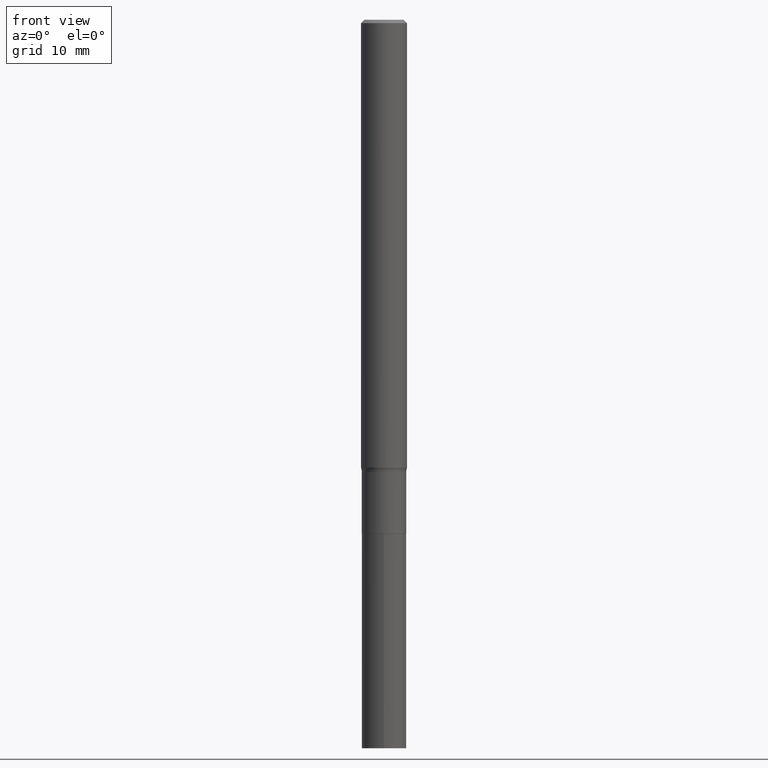
[diagram: clean part render]
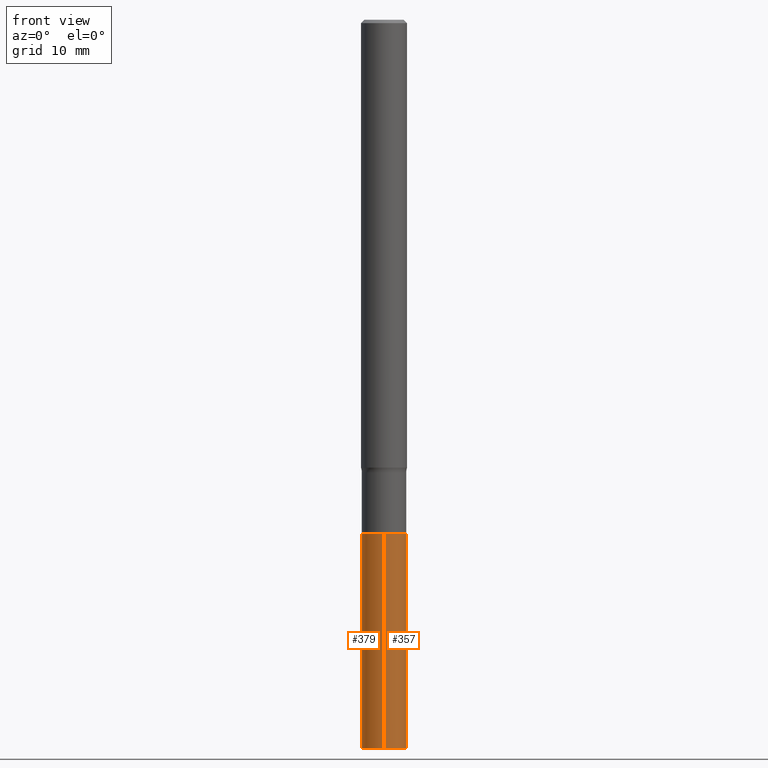
[diagram: same view with one multi-face feature highlighted, each face labeled with its STEP entity id]
A machine part, front view. The highlighted faces form ONE feature: a constant-radius fillet chain: 2 tangent blend faces with common blend radius 2.8994 mm. The faces share edges in the B-rep.
Their STEP definitions:
[1] entity #379 (Cylinder):
#39 = EDGE_CURVE ( 'NONE', #327, #150, #301, .T. ) ;
#54 = EDGE_CURVE ( 'NONE', #369, #327, #164, .T. ) ;
#58 = CARTESIAN_POINT ( 'NONE',  ( 6.451635804477628369E-29, -9.211226068135987462E-15, -2.638200000000000323 ) ) ;
#62 = DIRECTION ( 'NONE',  ( -6.982962677686264344E-15, -1.000000000000000000, 4.786417860121354983E-15 ) ) ;
#71 = VECTOR ( 'NONE', #278, 39.37007874015748143 ) ;
#85 = LINE ( 'NONE', #425, #112 ) ;
#86 = ORIENTED_EDGE ( 'NONE', *, *, #288, .F. ) ;
#90 = EDGE_CURVE ( 'NONE', #276, #150, #458, .T. ) ;
#112 = VECTOR ( 'NONE', #381, 39.37007874015748143 ) ;
#118 = CARTESIAN_POINT ( 'NONE',  ( -7.971051896578226363E-16, -0.1141500000000092024, -2.638199999999999878 ) ) ;
#133 = CARTESIAN_POINT ( 'NONE',  ( 8.110845328702459791E-16, 0.1141499999999908005, -2.638200000000000767 ) ) ;
#150 = VERTEX_POINT ( 'NONE', #299 ) ;
#164 = CIRCLE ( 'NONE', #190, 0.1141500000000000153 ) ;
#171 = CARTESIAN_POINT ( 'NONE',  ( 8.110845328702322726E-16, 0.1141499999999869563, -3.740200000000001079 ) ) ;
#190 = AXIS2_PLACEMENT_3D ( 'NONE', #266, #270, #199 ) ;
#199 = DIRECTION ( 'NONE',  ( -6.982962677686265922E-15, -1.000000000000000000, 4.786417860121354194E-15 ) ) ;
#202 = CYLINDRICAL_SURFACE ( 'NONE', #390, 0.1141500000000000015 ) ;
#239 = DIRECTION ( 'NONE',  ( -6.982962677686264344E-15, -1.000000000000000000, 4.786417860121354983E-15 ) ) ;
#249 = AXIS2_PLACEMENT_3D ( 'NONE', #428, #396, #62 ) ;
#266 = CARTESIAN_POINT ( 'NONE',  ( 9.139920139182118548E-29, -1.306832199932537301E-14, -3.740200000000000635 ) ) ;
#270 = DIRECTION ( 'NONE',  ( -2.439459468878846212E-29, 3.500087051895991866E-15, 1.000000000000000000 ) ) ;
#276 = VERTEX_POINT ( 'NONE', #133 ) ;
#278 = DIRECTION ( 'NONE',  ( -2.439459468878846492E-29, 3.500087051895992261E-15, 1.000000000000000000 ) ) ;
#280 = CARTESIAN_POINT ( 'NONE',  ( -7.971051896577959137E-16, -0.1141500000000130743, -3.740200000000000191 ) ) ;
#288 = EDGE_CURVE ( 'NONE', #369, #276, #85, .T. ) ;
#299 = CARTESIAN_POINT ( 'NONE',  ( -7.971051896578226363E-16, -0.1141500000000092024, -2.638199999999999878 ) ) ;
#301 = LINE ( 'NONE', #118, #71 ) ;
#327 = VERTEX_POINT ( 'NONE', #280 ) ;
#330 = ORIENTED_EDGE ( 'NONE', *, *, #39, .T. ) ;
#350 = ORIENTED_EDGE ( 'NONE', *, *, #90, .F. ) ;
#369 = VERTEX_POINT ( 'NONE', #171 ) ;
#379 = ADVANCED_FACE ( 'NONE', ( #382 ), #202, .T. ) ;
#381 = DIRECTION ( 'NONE',  ( -2.439459468878846492E-29, 3.500087051895992261E-15, 1.000000000000000000 ) ) ;
#382 = FACE_OUTER_BOUND ( 'NONE', #389, .T. ) ;
#389 = EDGE_LOOP ( 'NONE', ( #86, #397, #330, #350 ) ) ;
#390 = AXIS2_PLACEMENT_3D ( 'NONE', #58, #423, #239 ) ;
#396 = DIRECTION ( 'NONE',  ( -2.439459468878846212E-29, 3.500087051895991866E-15, 1.000000000000000000 ) ) ;
#397 = ORIENTED_EDGE ( 'NONE', *, *, #54, .T. ) ;
#423 = DIRECTION ( 'NONE',  ( -2.439459468878846212E-29, 3.500087051895991866E-15, 1.000000000000000000 ) ) ;
#425 = CARTESIAN_POINT ( 'NONE',  ( 8.110845328702187634E-16, 0.1141499999999908005, -2.638200000000000767 ) ) ;
#428 = CARTESIAN_POINT ( 'NONE',  ( 6.451635804477628369E-29, -9.211226068135987462E-15, -2.638200000000000323 ) ) ;
#458 = CIRCLE ( 'NONE', #249, 0.1141500000000000015 ) ;
[2] entity #357 (Cylinder):
#39 = EDGE_CURVE ( 'NONE', #327, #150, #301, .T. ) ;
#45 = EDGE_LOOP ( 'NONE', ( #142, #260, #192, #180 ) ) ;
#65 = AXIS2_PLACEMENT_3D ( 'NONE', #122, #275, #427 ) ;
#71 = VECTOR ( 'NONE', #278, 39.37007874015748143 ) ;
#85 = LINE ( 'NONE', #425, #112 ) ;
#97 = CYLINDRICAL_SURFACE ( 'NONE', #65, 0.1141500000000000015 ) ;
#99 = AXIS2_PLACEMENT_3D ( 'NONE', #211, #244, #129 ) ;
#102 = EDGE_CURVE ( 'NONE', #150, #276, #283, .T. ) ;
#112 = VECTOR ( 'NONE', #381, 39.37007874015748143 ) ;
#118 = CARTESIAN_POINT ( 'NONE',  ( -7.971051896578226363E-16, -0.1141500000000092024, -2.638199999999999878 ) ) ;
#122 = CARTESIAN_POINT ( 'NONE',  ( 6.451635804477628369E-29, -9.211226068135987462E-15, -2.638200000000000323 ) ) ;
#129 = DIRECTION ( 'NONE',  ( -6.982962677686264344E-15, -1.000000000000000000, 4.786417860121354983E-15 ) ) ;
#133 = CARTESIAN_POINT ( 'NONE',  ( 8.110845328702459791E-16, 0.1141499999999908005, -2.638200000000000767 ) ) ;
#142 = ORIENTED_EDGE ( 'NONE', *, *, #220, .T. ) ;
#150 = VERTEX_POINT ( 'NONE', #299 ) ;
#153 = CIRCLE ( 'NONE', #358, 0.1141500000000000153 ) ;
#171 = CARTESIAN_POINT ( 'NONE',  ( 8.110845328702322726E-16, 0.1141499999999869563, -3.740200000000001079 ) ) ;
#176 = DIRECTION ( 'NONE',  ( -2.439459468878846212E-29, 3.500087051895991866E-15, 1.000000000000000000 ) ) ;
#180 = ORIENTED_EDGE ( 'NONE', *, *, #39, .F. ) ;
#192 = ORIENTED_EDGE ( 'NONE', *, *, #102, .F. ) ;
#211 = CARTESIAN_POINT ( 'NONE',  ( 6.451635804477628369E-29, -9.211226068135987462E-15, -2.638200000000000323 ) ) ;
#220 = EDGE_CURVE ( 'NONE', #327, #369, #153, .T. ) ;
#244 = DIRECTION ( 'NONE',  ( -2.439459468878846212E-29, 3.500087051895991866E-15, 1.000000000000000000 ) ) ;
#260 = ORIENTED_EDGE ( 'NONE', *, *, #288, .T. ) ;
#275 = DIRECTION ( 'NONE',  ( -2.439459468878846212E-29, 3.500087051895991866E-15, 1.000000000000000000 ) ) ;
#276 = VERTEX_POINT ( 'NONE', #133 ) ;
#278 = DIRECTION ( 'NONE',  ( -2.439459468878846492E-29, 3.500087051895992261E-15, 1.000000000000000000 ) ) ;
#280 = CARTESIAN_POINT ( 'NONE',  ( -7.971051896577959137E-16, -0.1141500000000130743, -3.740200000000000191 ) ) ;
#282 = DIRECTION ( 'NONE',  ( -6.982962677686265922E-15, -1.000000000000000000, 4.786417860121354194E-15 ) ) ;
#283 = CIRCLE ( 'NONE', #99, 0.1141500000000000015 ) ;
#288 = EDGE_CURVE ( 'NONE', #369, #276, #85, .T. ) ;
#299 = CARTESIAN_POINT ( 'NONE',  ( -7.971051896578226363E-16, -0.1141500000000092024, -2.638199999999999878 ) ) ;
#301 = LINE ( 'NONE', #118, #71 ) ;
#327 = VERTEX_POINT ( 'NONE', #280 ) ;
#355 = CARTESIAN_POINT ( 'NONE',  ( 9.139920139182118548E-29, -1.306832199932537301E-14, -3.740200000000000635 ) ) ;
#357 = ADVANCED_FACE ( 'NONE', ( #432 ), #97, .T. ) ;
#358 = AXIS2_PLACEMENT_3D ( 'NONE', #355, #176, #282 ) ;
#369 = VERTEX_POINT ( 'NONE', #171 ) ;
#381 = DIRECTION ( 'NONE',  ( -2.439459468878846492E-29, 3.500087051895992261E-15, 1.000000000000000000 ) ) ;
#425 = CARTESIAN_POINT ( 'NONE',  ( 8.110845328702187634E-16, 0.1141499999999908005, -2.638200000000000767 ) ) ;
#427 = DIRECTION ( 'NONE',  ( -6.982962677686264344E-15, -1.000000000000000000, 4.786417860121354983E-15 ) ) ;
#432 = FACE_OUTER_BOUND ( 'NONE', #45, .T. ) ;